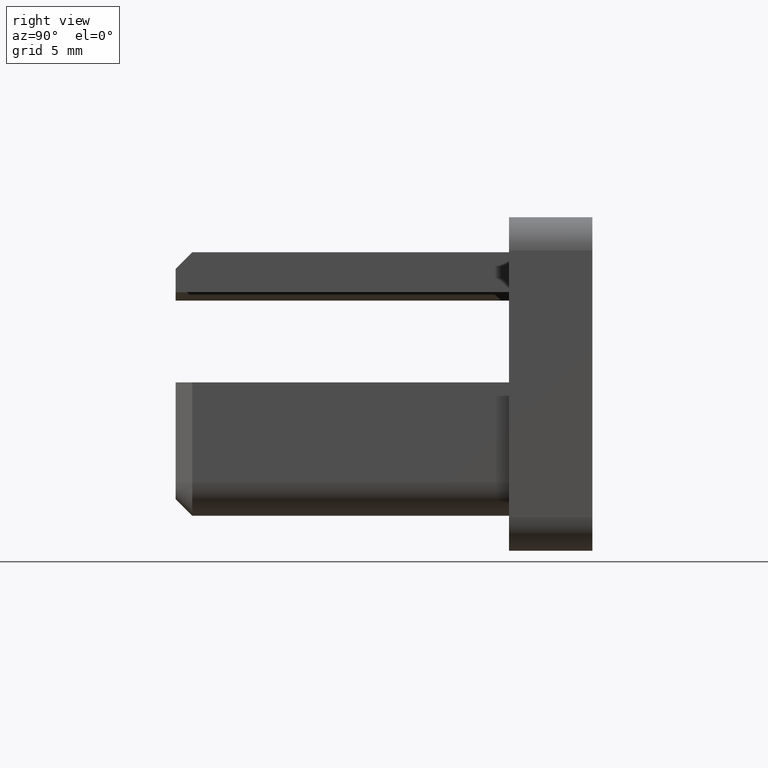
[diagram: clean part render]
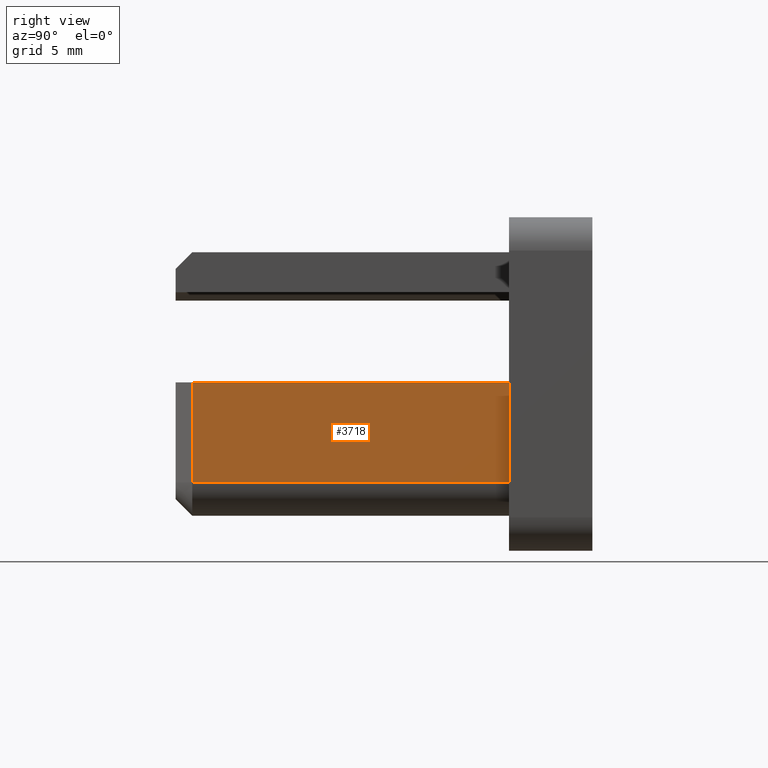
[diagram: same view with one face highlighted and labeled with its STEP entity id]
A machine part, right view. The second image highlights one B-rep face of the part: STEP entity #3718.
In plain terms, the highlighted planar face has unit normal (-1, 0, -0).
Its self-contained STEP definition (entity closure, byte-faithful):
#757 = ORIENTED_EDGE ( 'NONE', *, *, #12006, .T. ) ;
#1599 = EDGE_CURVE ( 'NONE', #9672, #3580, #7059, .T. ) ;
#2123 = CARTESIAN_POINT ( 'NONE',  ( 12.90000000000000400, -18.99999999999998900, 0.1000000000000028600 ) ) ;
#3357 = CARTESIAN_POINT ( 'NONE',  ( 12.90000000000000400, 0.0000000000000000000, 0.1000000000000028600 ) ) ;
#3438 = PLANE ( 'NONE',  #12424 ) ;
#3580 = VERTEX_POINT ( 'NONE', #7985 ) ;
#3679 = ORIENTED_EDGE ( 'NONE', *, *, #1599, .T. ) ;
#3718 = ADVANCED_FACE ( 'NONE', ( #11937 ), #3438, .F. ) ;
#4137 = VERTEX_POINT ( 'NONE', #3357 ) ;
#4188 = DIRECTION ( 'NONE',  ( -0.0000000000000000000, 1.000000000000000000, -0.0000000000000000000 ) ) ;
#5310 = EDGE_LOOP ( 'NONE', ( #10210, #757, #3679, #11913 ) ) ;
#5386 = EDGE_CURVE ( 'NONE', #11137, #4137, #13422, .T. ) ;
#6770 = DIRECTION ( 'NONE',  ( -0.0000000000000000000, -0.0000000000000000000, 1.000000000000000000 ) ) ;
#7059 = LINE ( 'NONE', #15486, #8580 ) ;
#7556 = CARTESIAN_POINT ( 'NONE',  ( 12.90000000000000400, -18.99999999999998900, -5.899999999999996800 ) ) ;
#7729 = VECTOR ( 'NONE', #6770, 1000.000000000000000 ) ;
#7951 = CARTESIAN_POINT ( 'NONE',  ( 12.90000000000000400, 0.0000000000000000000, 0.1000000000000028600 ) ) ;
#7985 = CARTESIAN_POINT ( 'NONE',  ( 12.90000000000000400, 0.0000000000000000000, -5.899999999999996800 ) ) ;
#8355 = DIRECTION ( 'NONE',  ( -1.000000000000000000, 0.0000000000000000000, -0.0000000000000000000 ) ) ;
#8580 = VECTOR ( 'NONE', #9480, 1000.000000000000000 ) ;
#9286 = DIRECTION ( 'NONE',  ( -0.0000000000000000000, 0.0000000000000000000, 1.000000000000000000 ) ) ;
#9382 = LINE ( 'NONE', #2123, #9567 ) ;
#9402 = EDGE_CURVE ( 'NONE', #3580, #4137, #13975, .T. ) ;
#9480 = DIRECTION ( 'NONE',  ( 0.0000000000000000000, 1.000000000000000000, 0.0000000000000000000 ) ) ;
#9567 = VECTOR ( 'NONE', #11845, 1000.000000000000000 ) ;
#9672 = VERTEX_POINT ( 'NONE', #7556 ) ;
#10210 = ORIENTED_EDGE ( 'NONE', *, *, #5386, .F. ) ;
#10213 = VECTOR ( 'NONE', #4188, 1000.000000000000000 ) ;
#11137 = VERTEX_POINT ( 'NONE', #14313 ) ;
#11845 = DIRECTION ( 'NONE',  ( 0.0000000000000000000, 0.0000000000000000000, -1.000000000000000000 ) ) ;
#11913 = ORIENTED_EDGE ( 'NONE', *, *, #9402, .T. ) ;
#11937 = FACE_OUTER_BOUND ( 'NONE', #5310, .T. ) ;
#12006 = EDGE_CURVE ( 'NONE', #11137, #9672, #9382, .T. ) ;
#12424 = AXIS2_PLACEMENT_3D ( 'NONE', #15609, #8355, #9286 ) ;
#13422 = LINE ( 'NONE', #14902, #10213 ) ;
#13975 = LINE ( 'NONE', #7951, #7729 ) ;
#14313 = CARTESIAN_POINT ( 'NONE',  ( 12.90000000000000400, -18.99999999999998900, 0.1000000000000028600 ) ) ;
#14902 = CARTESIAN_POINT ( 'NONE',  ( 12.90000000000000400, -20.00000000000000000, 0.1000000000000028600 ) ) ;
#15486 = CARTESIAN_POINT ( 'NONE',  ( 12.90000000000000400, -20.00000000000000000, -5.899999999999996800 ) ) ;
#15609 = CARTESIAN_POINT ( 'NONE',  ( 12.90000000000000400, -20.00000000000000000, 0.1000000000000028600 ) ) ;